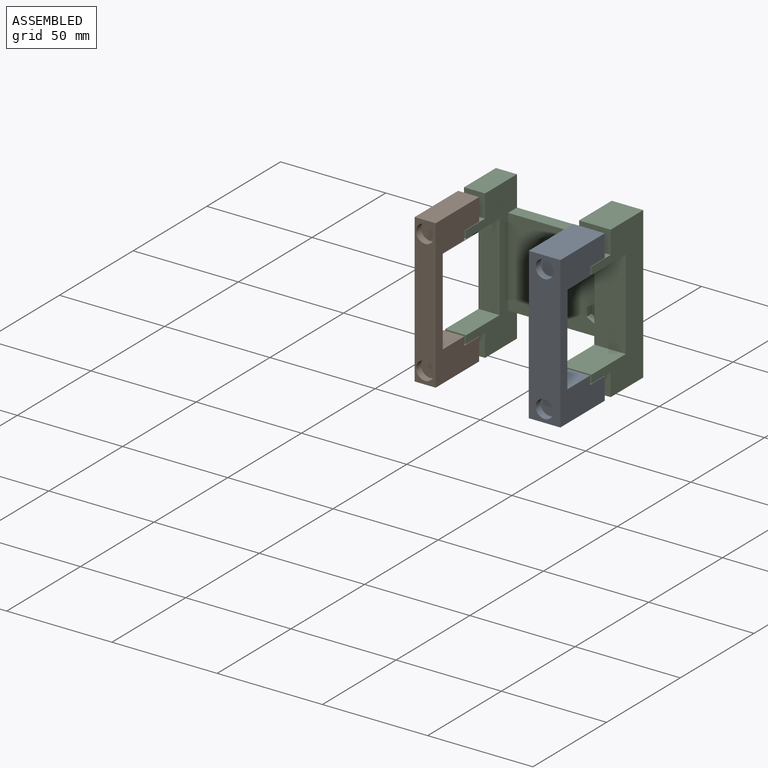
[diagram: assembled view]
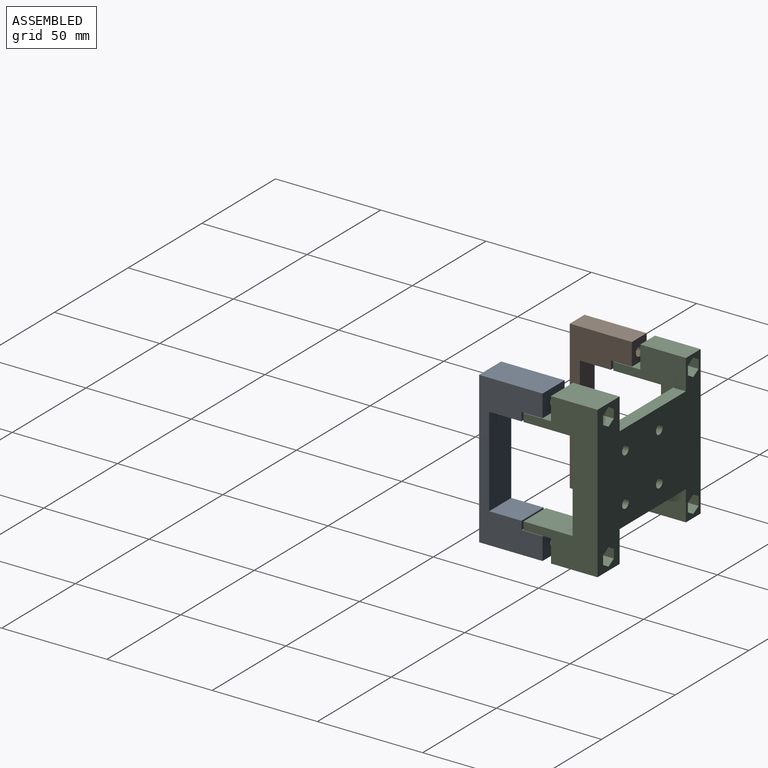
[diagram: assembled view, second angle]
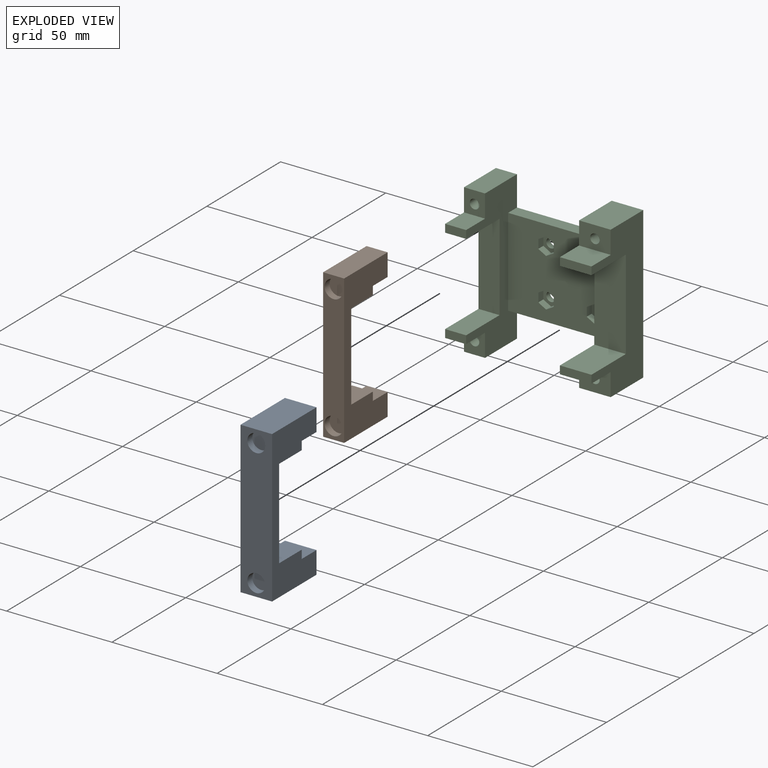
[diagram: exploded view]
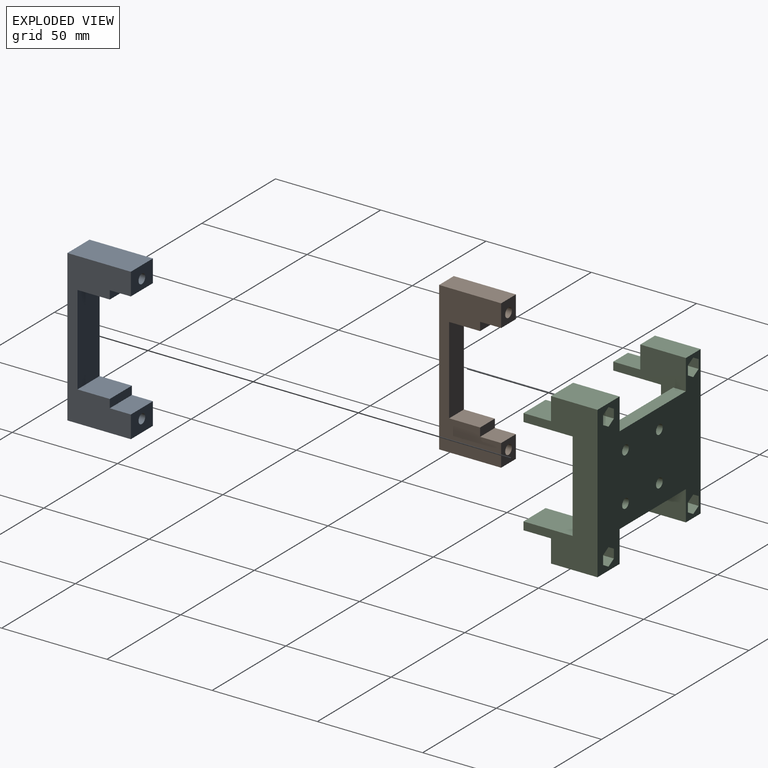
[diagram: exploded view, second angle]
ASSEMBLY  parts=3 mates=2
PART A: 22 faces, bbox 15x30.2x71.9 mm
  f0: plane 71.9x15mm, normal (0,1,0), area 965mm2, adj f1,f2,f10,f13,f16,f18
  f1: plane 71.9x30.15mm, normal (-1,0,0), area 1005.3mm2, adj f0,f3,f4,f5,f6,f7,f8,f10
  f2: plane 71.9x30.15mm, normal (1,0,0), area 1005.3mm2, adj f0,f3,f4,f5,f6,f7,f8,f10
  f3: plane 42.7x15mm, normal (0,-1,0), area 640.5mm2, adj f1,f2,f4,f6
  f4: plane 15.35x15mm, normal (0,0,-1), area 230.2mm2, adj f1,f2,f3,f5
  f5: plane 15x4mm, normal (0,-1,0), area 60mm2, adj f1,f2,f4,f8
  f6: plane 15.35x15mm, normal (0,0,1), area 230.2mm2, adj f1,f2,f3,f7
  f7: plane 15x4mm, normal (0,-1,0), area 60mm2, adj f1,f2,f6,f12
  f8: plane 15x10mm, normal (0,0,-1), area 150mm2, adj f1,f2,f5,f11
  f9: cylinder r=2.25mm len=26.55mm, axis (0,1,0), area 375.3mm2, adj f11,f20
  f10: plane 30.15x15mm, normal (0,0,1), area 452.2mm2, adj f0,f1,f2,f11
  f11: plane 15x10.6mm, normal (0,-1,0), area 143.1mm2, adj f1,f2,f8,f9,f10
  f12: plane 15x10mm, normal (0,0,1), area 150mm2, adj f1,f2,f7,f15
  f13: plane 30.15x15mm, normal (0,0,-1), area 452.2mm2, adj f0,f1,f2,f15
  f14: cylinder r=2.25mm len=26.55mm, axis (0,1,0), area 375.3mm2, adj f15,f21
  f15: plane 15x10.6mm, normal (0,-1,0), area 143.1mm2, adj f1,f2,f12,f13,f14
  f16: cylinder r=4.25mm len=8.5mm, axis (0,1,0), area 90.8mm2, adj f0,f17
  f17: plane 8.5x8.5mm, normal (0,1,0), area 56.7mm2, adj f16
  f18: cylinder r=4.25mm len=8.5mm, axis (0,1,0), area 90.8mm2, adj f0,f19
  f19: plane 8.5x8.5mm, normal (0,1,0), area 56.7mm2, adj f18
  f20: plane 4.5x4.5mm, normal (0,-1,0), area 15.9mm2, adj f9
  f21: plane 4.5x4.5mm, normal (0,-1,0), area 15.9mm2, adj f14
PART B: 22 faces, bbox 10x29.5x70.6 mm
  f0: plane 70.6x10mm, normal (0,1,0), area 589.8mm2, adj f1,f2,f10,f13,f16,f18
  f1: plane 70.6x29.5mm, normal (-1,0,0), area 980.1mm2, adj f0,f3,f4,f5,f6,f7,f8,f10
  f2: plane 70.6x29.5mm, normal (1,0,0), area 980.1mm2, adj f0,f3,f4,f5,f6,f7,f8,f10
  f3: plane 41.4x10mm, normal (0,-1,0), area 414mm2, adj f1,f2,f4,f6
  f4: plane 14.7x10mm, normal (0,0,-1), area 147mm2, adj f1,f2,f3,f5
  f5: plane 10x4mm, normal (0,-1,0), area 40mm2, adj f1,f2,f4,f8
  f6: plane 14.7x10mm, normal (0,0,1), area 147mm2, adj f1,f2,f3,f7
  f7: plane 10x4mm, normal (0,-1,0), area 40mm2, adj f1,f2,f6,f12
  f8: plane 10x10mm, normal (0,0,-1), area 100mm2, adj f1,f2,f5,f11
  f9: cylinder r=2.25mm len=25.9mm, axis (0,1,0), area 366.2mm2, adj f11,f20
  f10: plane 29.5x10mm, normal (0,0,1), area 295mm2, adj f0,f1,f2,f11
  f11: plane 10.6x10mm, normal (0,-1,0), area 90.1mm2, adj f1,f2,f8,f9,f10
  f12: plane 10x10mm, normal (0,0,1), area 100mm2, adj f1,f2,f7,f15
  f13: plane 29.5x10mm, normal (0,0,-1), area 295mm2, adj f0,f1,f2,f15
  f14: cylinder r=2.25mm len=25.9mm, axis (0,1,0), area 366.2mm2, adj f15,f21
  f15: plane 10.6x10mm, normal (0,-1,0), area 90.1mm2, adj f1,f2,f12,f13,f14
  f16: cylinder r=4.3mm len=8.6mm, axis (0,1,0), area 91.9mm2, adj f0,f17
  f17: plane 8.6x8.6mm, normal (0,1,0), area 58.1mm2, adj f16
  f18: cylinder r=4.3mm len=8.6mm, axis (0,1,0), area 91.9mm2, adj f0,f19
  f19: plane 8.6x8.6mm, normal (0,1,0), area 58.1mm2, adj f18
  f20: plane 4.5x4.5mm, normal (0,-1,0), area 15.9mm2, adj f9
  f21: plane 4.5x4.5mm, normal (0,-1,0), area 15.9mm2, adj f14
PART C: 94 faces, bbox 70x35.2x71.9 mm
  f0: plane 71.9x70mm, normal (0,1,0), area 3426.3mm2, adj f11,f23,f28,f29,f31,f32,f46,f49
  f1: plane 3.65x3.4mm, normal (0.5,0,-0.87), area 14.3mm2, adj f2,f26,f27,f63
  f2: plane 3.65x3.4mm, normal (-0.5,0,-0.87), area 14.3mm2, adj f1,f3,f27,f63
  f3: plane 4.21x3.4mm, normal (-1,0,0), area 14.3mm2, adj f2,f4,f27,f63
  f4: plane 3.65x3.4mm, normal (-0.5,0,0.87), area 14.3mm2, adj f3,f5,f27,f63
  f5: plane 3.65x3.4mm, normal (0.5,0,0.87), area 14.3mm2, adj f4,f26,f27,f63
  f6: plane 3.65x3.4mm, normal (0.5,0,-0.87), area 14.3mm2, adj f7,f22,f27,f59
  f7: plane 3.65x3.4mm, normal (-0.5,0,-0.87), area 14.3mm2, adj f6,f8,f27,f59
  f8: plane 4.21x3.4mm, normal (-1,0,0), area 14.3mm2, adj f7,f9,f27,f59
  f9: plane 3.65x3.4mm, normal (-0.5,0,0.87), area 14.3mm2, adj f8,f10,f27,f59
  f10: plane 3.65x3.4mm, normal (0.5,0,0.87), area 14.3mm2, adj f9,f22,f27,f59
  f11: plane 45x6mm, normal (0,0,1), area 270mm2, adj f0,f27,f28,f31
  f12: plane 3.65x3.4mm, normal (-0.5,0,0.87), area 14.3mm2, adj f13,f24,f27,f61
  f13: plane 3.65x3.4mm, normal (0.5,0,0.87), area 14.3mm2, adj f12,f14,f27,f61
  f14: plane 4.21x3.4mm, normal (1,0,0), area 14.3mm2, adj f13,f15,f27,f61
  f15: plane 3.65x3.4mm, normal (0.5,0,-0.87), area 14.3mm2, adj f14,f16,f27,f61
  f16: plane 3.65x3.4mm, normal (-0.5,0,-0.87), area 14.3mm2, adj f15,f24,f27,f61
  f17: plane 4.21x3.4mm, normal (-1,0,0), area 14.3mm2, adj f18,f25,f27,f65
  f18: plane 3.65x3.4mm, normal (-0.5,0,0.87), area 14.3mm2, adj f17,f19,f27,f65
  f19: plane 3.65x3.4mm, normal (0.5,0,0.87), area 14.3mm2, adj f18,f20,f27,f65
  f20: plane 4.21x3.4mm, normal (1,0,0), area 14.3mm2, adj f19,f21,f27,f65
  f21: plane 3.65x3.4mm, normal (0.5,0,-0.87), area 14.3mm2, adj f20,f25,f27,f65
  f22: plane 4.21x3.4mm, normal (1,0,0), area 14.3mm2, adj f6,f10,f27,f59
  f23: plane 45x6mm, normal (0,0,-1), area 270mm2, adj f0,f27,f28,f31
  f24: plane 4.21x3.4mm, normal (-1,0,0), area 14.3mm2, adj f12,f16,f27,f61
  f25: plane 3.65x3.4mm, normal (-0.5,0,-0.87), area 14.3mm2, adj f17,f21,f27,f65
  f26: plane 4.21x3.4mm, normal (1,0,0), area 14.3mm2, adj f1,f5,f27,f63
  f27: plane 45x42mm, normal (0,-1,0), area 1705.4mm2, adj f1,f2,f3,f4,f5,f6,f7,f8
  f28: plane 71.9x35.15mm, normal (-1,0,0), area 996.4mm2, adj f0,f11,f23,f27,f30,f40,f41,f42
  f29: plane 71.9x35.15mm, normal (1,0,0), area 1248.4mm2, adj f0,f30,f40,f41,f42,f43,f44,f45
  f30: plane 42.7x15mm, normal (0,-1,0), area 640.5mm2, adj f28,f29,f40,f43
  f31: plane 70.6x34.5mm, normal (1,0,0), area 966.7mm2, adj f0,f11,f23,f27,f33,f34,f35,f36
  f32: plane 70.6x34.5mm, normal (-1,0,0), area 1218.7mm2, adj f0,f33,f34,f35,f36,f37,f38,f39
  f33: plane 41.4x10mm, normal (0,-1,0), area 414mm2, adj f31,f32,f34,f37
  f34: plane 22.7x10mm, normal (0,0,-1), area 227mm2, adj f31,f32,f33,f36
  f35: plane 12.83x10mm, normal (0,0,1), area 128.3mm2, adj f31,f32,f36,f48
  f36: plane 10x3.8mm, normal (0,-1,0), area 38mm2, adj f31,f32,f34,f35
  f37: plane 22.7x10mm, normal (0,0,1), area 227mm2, adj f31,f32,f33,f39
  f38: plane 12.83x10mm, normal (0,0,-1), area 128.3mm2, adj f31,f32,f39,f51
  f39: plane 10x3.8mm, normal (0,-1,0), area 38mm2, adj f31,f32,f37,f38
  f40: plane 23.35x15mm, normal (0,0,-1), area 350.2mm2, adj f28,f29,f30,f42
  f41: plane 15x13.05mm, normal (0,0,1), area 195.7mm2, adj f28,f29,f42,f54
  f42: plane 15x3.8mm, normal (0,-1,0), area 57mm2, adj f28,f29,f40,f41
  f43: plane 23.35x15mm, normal (0,0,1), area 350.2mm2, adj f28,f29,f30,f45
  f44: plane 15x13.05mm, normal (0,0,-1), area 195.7mm2, adj f28,f29,f45,f57
  f45: plane 15x3.8mm, normal (0,-1,0), area 57mm2, adj f28,f29,f43,f44
  f46: plane 21.67x10mm, normal (0,0,1), area 216.7mm2, adj f0,f31,f32,f48
  f47: cylinder r=2.25mm len=10.17mm, axis (0,1,0), area 143.7mm2, adj f48,f86
  f48: plane 10.8x10mm, normal (0,-1,0), area 92.1mm2, adj f31,f32,f35,f46,f47
  f49: plane 21.67x10mm, normal (0,0,-1), area 216.7mm2, adj f0,f31,f32,f51
  f50: cylinder r=2.25mm len=10.17mm, axis (0,1,0), area 143.7mm2, adj f51,f93
  f51: plane 10.8x10mm, normal (0,-1,0), area 92.1mm2, adj f31,f32,f38,f49,f50
  f52: plane 22.1x15mm, normal (0,0,1), area 331.5mm2, adj f0,f28,f29,f54
  f53: cylinder r=2.25mm len=10.6mm, axis (0,1,0), area 149.9mm2, adj f54,f79
  f54: plane 15x10.8mm, normal (0,-1,0), area 146.1mm2, adj f28,f29,f41,f52,f53
  f55: plane 22.1x15mm, normal (0,0,-1), area 331.5mm2, adj f0,f28,f29,f57
  f56: cylinder r=2.25mm len=10.6mm, axis (0,1,0), area 149.9mm2, adj f57,f72
  f57: plane 15x10.8mm, normal (0,-1,0), area 146.1mm2, adj f28,f29,f44,f55,f56
  f58: cylinder r=2.25mm len=4.5mm, axis (0,1,0), area 36.8mm2, adj f0,f59
  f59: plane 8.43x7.3mm, normal (0,-1,0), area 30.2mm2, adj f6,f7,f8,f9,f10,f22,f58
  f60: cylinder r=2.25mm len=4.5mm, axis (0,1,0), area 36.8mm2, adj f0,f61
  f61: plane 8.43x7.3mm, normal (0,-1,0), area 30.2mm2, adj f12,f13,f14,f15,f16,f24,f60
  f62: cylinder r=2.25mm len=4.5mm, axis (0,1,0), area 36.8mm2, adj f0,f63
  f63: plane 8.43x7.3mm, normal (0,-1,0), area 30.2mm2, adj f1,f2,f3,f4,f5,f26,f62
  f64: cylinder r=2.25mm len=4.5mm, axis (0,1,0), area 36.8mm2, adj f0,f65
  f65: plane 8.43x7.3mm, normal (0,-1,0), area 30.2mm2, adj f17,f18,f19,f20,f21,f25,f64
  f66: plane 11.5x3.65mm, normal (0.5,0,-0.87), area 48.5mm2, adj f0,f67,f71,f72
  f67: plane 11.5x4.21mm, normal (1,0,0), area 48.5mm2, adj f0,f66,f68,f72
  f68: plane 11.5x3.65mm, normal (0.5,0,0.87), area 48.5mm2, adj f0,f67,f69,f72
  f69: plane 11.5x3.65mm, normal (-0.5,0,0.87), area 48.5mm2, adj f0,f68,f70,f72
  f70: plane 11.5x4.21mm, normal (-1,0,0), area 48.5mm2, adj f0,f69,f71,f72
  f71: plane 11.5x3.65mm, normal (-0.5,0,-0.87), area 48.5mm2, adj f0,f66,f70,f72
  f72: plane 8.43x7.3mm, normal (0,1,0), area 30.2mm2, adj f56,f66,f67,f68,f69,f70,f71
  f73: plane 11.5x3.65mm, normal (-0.5,0,-0.87), area 48.5mm2, adj f0,f74,f78,f79
  f74: plane 11.5x3.65mm, normal (0.5,0,-0.87), area 48.5mm2, adj f0,f73,f75,f79
  f75: plane 11.5x4.21mm, normal (1,0,0), area 48.5mm2, adj f0,f74,f76,f79
  f76: plane 11.5x3.65mm, normal (0.5,0,0.87), area 48.5mm2, adj f0,f75,f77,f79
  f77: plane 11.5x3.65mm, normal (-0.5,0,0.87), area 48.5mm2, adj f0,f76,f78,f79
  f78: plane 11.5x4.21mm, normal (-1,0,0), area 48.5mm2, adj f0,f73,f77,f79
  f79: plane 8.43x7.3mm, normal (0,1,0), area 30.2mm2, adj f53,f73,f74,f75,f76,f77,f78
  f80: plane 11.5x3.65mm, normal (-0.5,0,-0.87), area 48.5mm2, adj f0,f81,f85,f86
  f81: plane 11.5x3.65mm, normal (0.5,0,-0.87), area 48.5mm2, adj f0,f80,f82,f86
  f82: plane 11.5x4.21mm, normal (1,0,0), area 48.5mm2, adj f0,f81,f83,f86
  f83: plane 11.5x3.65mm, normal (0.5,0,0.87), area 48.5mm2, adj f0,f82,f84,f86
  f84: plane 11.5x3.65mm, normal (-0.5,0,0.87), area 48.5mm2, adj f0,f83,f85,f86
  f85: plane 11.5x4.21mm, normal (-1,0,0), area 48.5mm2, adj f0,f80,f84,f86
  f86: plane 8.43x7.3mm, normal (0,1,0), area 30.2mm2, adj f47,f80,f81,f82,f83,f84,f85
  f87: plane 11.5x3.65mm, normal (-0.5,0,-0.87), area 48.5mm2, adj f0,f88,f92,f93
  f88: plane 11.5x3.65mm, normal (0.5,0,-0.87), area 48.5mm2, adj f0,f87,f89,f93
  f89: plane 11.5x4.21mm, normal (1,0,0), area 48.5mm2, adj f0,f88,f90,f93
  f90: plane 11.5x3.65mm, normal (0.5,0,0.87), area 48.5mm2, adj f0,f89,f91,f93
  f91: plane 11.5x3.65mm, normal (-0.5,0,0.87), area 48.5mm2, adj f0,f90,f92,f93
  f92: plane 11.5x4.21mm, normal (-1,0,0), area 48.5mm2, adj f0,f87,f91,f93
  f93: plane 8.43x7.3mm, normal (0,1,0), area 30.2mm2, adj f50,f87,f88,f89,f90,f91,f92
PLACE A rot(axis=(0,0,1),180deg) t=(24.21,-41.02,-0.67)mm
PLACE B rot(axis=(0,0,1),180deg) t=(-33.29,-39.93,-0.67)mm
PLACE C t=(1.21,15.23,-0.67)mm fixed
MATE fastened C.f47 <-> B.f9  axis (0,-1,0) through (-33.29,-6.43,28.73)mm
MATE fastened A.f9 <-> C.f53  axis (0,1,0) through (24.21,-10.87,29.38)mm
